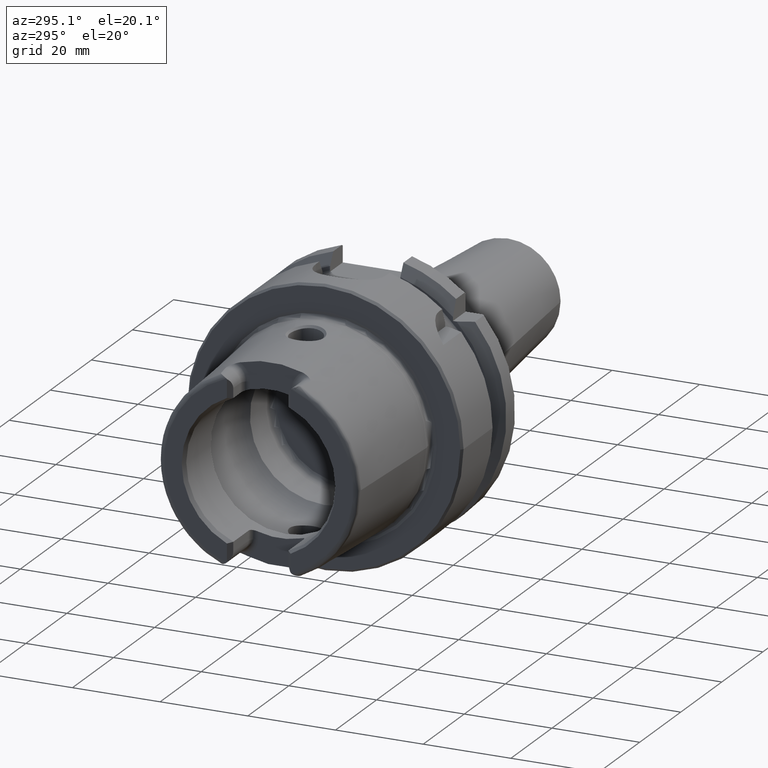
[diagram: clean part render]
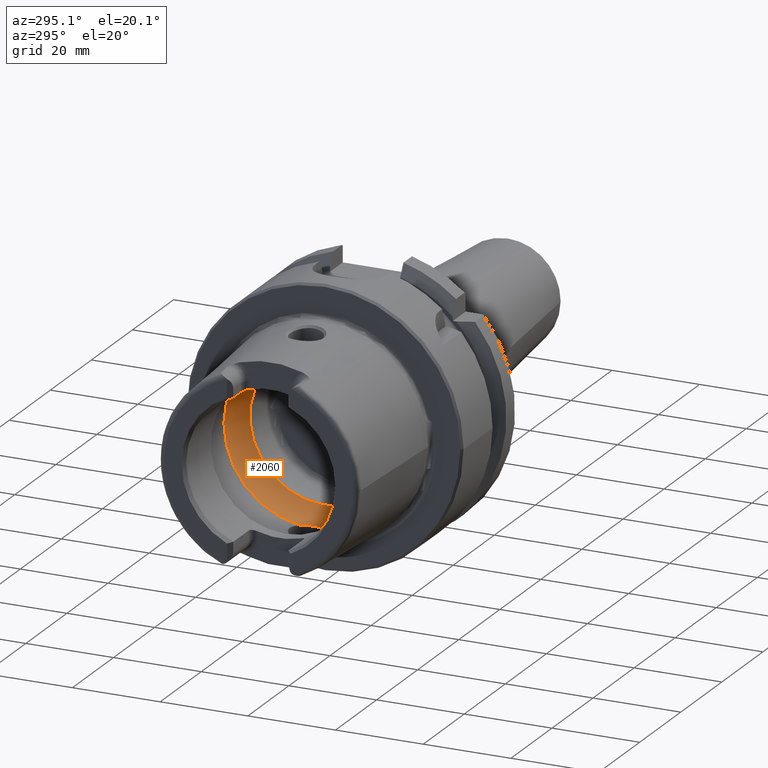
[diagram: same view with one face highlighted and labeled with its STEP entity id]
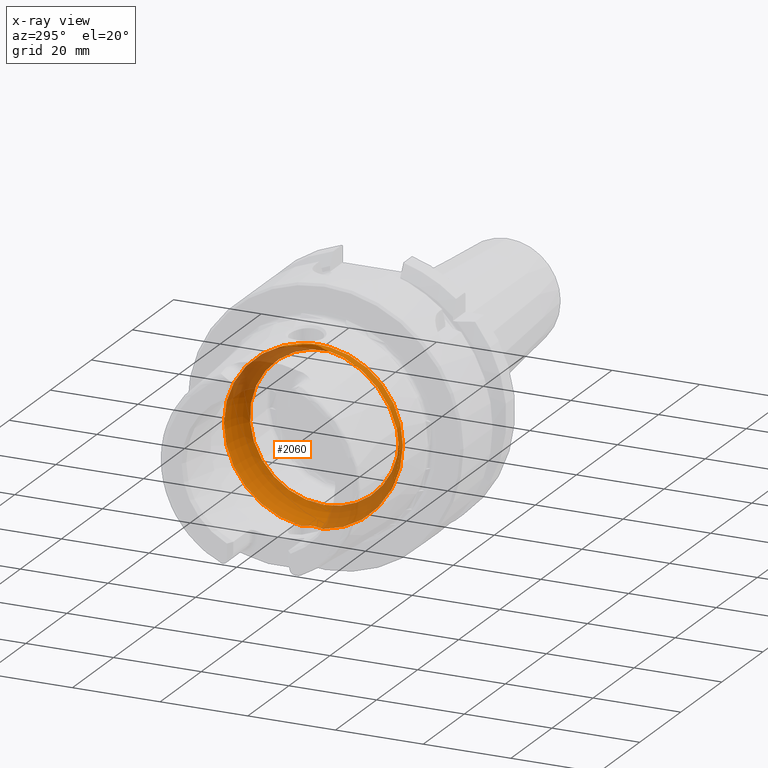
[diagram: x-ray of the same camera — body ghosted, the highlighted face saturated]
A machine part, auxiliary view. The second image highlights one B-rep face of the part: STEP entity #2060.
The next image is the same camera in x-ray: the body ghosted, the highlighted face saturated — about 30% of this face is hidden behind the body in this view.
In plain terms, the highlighted toroidal blend (fillet) surface has major radius 12 mm and minor (blend) radius 8 mm.
Its self-contained STEP definition (entity closure, byte-faithful):
#49=B_SPLINE_CURVE_WITH_KNOTS('',3,(#3630,#3631,#3632,#3633,#3634,#3635,
#3636,#3637,#3638,#3639,#3640,#3641),.UNSPECIFIED.,.F.,.F.,(4,2,2,2,2,4),
(-0.560647090003115,-0.432465132423936,-0.371738630353782,-0.32053783623797,
-0.287500355516274,-0.280385270121909),.UNSPECIFIED.);
#51=B_SPLINE_CURVE_WITH_KNOTS('',3,(#3674,#3675,#3676,#3677,#3678,#3679,
#3680,#3681,#3682,#3683),.UNSPECIFIED.,.F.,.F.,(4,2,2,2,4),(-0.280385270121909,
-0.256917987419631,-0.21744735037608,-0.138661357565599,0.),
 .UNSPECIFIED.);
#54=B_SPLINE_CURVE_WITH_KNOTS('',3,(#3799,#3800,#3801,#3802,#3803,#3804,
#3805,#3806,#3807,#3808,#3809,#3810),.UNSPECIFIED.,.F.,.F.,(4,2,2,2,2,4),
(-0.560647090003256,-0.432465132424011,-0.371738630353825,-0.32053783623799,
-0.287500355516289,-0.280385270121924),.UNSPECIFIED.);
#56=B_SPLINE_CURVE_WITH_KNOTS('',3,(#3843,#3844,#3845,#3846,#3847,#3848,
#3849,#3850,#3851,#3852),.UNSPECIFIED.,.F.,.F.,(4,2,2,2,4),(-0.280385270121924,
-0.256917987419636,-0.217447350376074,-0.138661357565593,0.),
 .UNSPECIFIED.);
#151=TOROIDAL_SURFACE('',#2262,12.,8.);
#257=FACE_OUTER_BOUND('',#390,.T.);
#390=EDGE_LOOP('',(#1561,#1562,#1563,#1564,#1565,#1566,#1567,#1568,#1569,
#1570,#1571));
#743=CIRCLE('',#2257,20.);
#746=CIRCLE('',#2260,20.);
#747=CIRCLE('',#2261,20.);
#748=CIRCLE('',#2263,17.);
#749=CIRCLE('',#2264,17.);
#750=CIRCLE('',#2265,8.);
#920=VERTEX_POINT('',#3627);
#921=VERTEX_POINT('',#3629);
#922=VERTEX_POINT('',#3642);
#925=VERTEX_POINT('',#3797);
#926=VERTEX_POINT('',#3798);
#927=VERTEX_POINT('',#3811);
#928=VERTEX_POINT('',#3855);
#931=VERTEX_POINT('',#3865);
#932=VERTEX_POINT('',#3866);
#1157=EDGE_CURVE('',#921,#920,#49,.T.);
#1159=EDGE_CURVE('',#920,#922,#51,.T.);
#1163=EDGE_CURVE('',#925,#926,#54,.T.);
#1165=EDGE_CURVE('',#926,#927,#56,.T.);
#1167=EDGE_CURVE('',#928,#925,#743,.T.);
#1171=EDGE_CURVE('',#922,#928,#746,.T.);
#1172=EDGE_CURVE('',#927,#921,#747,.T.);
#1173=EDGE_CURVE('',#931,#932,#748,.T.);
#1174=EDGE_CURVE('',#932,#931,#749,.T.);
#1175=EDGE_CURVE('',#932,#920,#750,.T.);
#1561=ORIENTED_EDGE('',*,*,#1173,.F.);
#1562=ORIENTED_EDGE('',*,*,#1174,.F.);
#1563=ORIENTED_EDGE('',*,*,#1175,.T.);
#1564=ORIENTED_EDGE('',*,*,#1159,.T.);
#1565=ORIENTED_EDGE('',*,*,#1171,.T.);
#1566=ORIENTED_EDGE('',*,*,#1167,.T.);
#1567=ORIENTED_EDGE('',*,*,#1163,.T.);
#1568=ORIENTED_EDGE('',*,*,#1165,.T.);
#1569=ORIENTED_EDGE('',*,*,#1172,.T.);
#1570=ORIENTED_EDGE('',*,*,#1157,.T.);
#1571=ORIENTED_EDGE('',*,*,#1175,.F.);
#2060=ADVANCED_FACE('',(#257),#151,.F.);
#2257=AXIS2_PLACEMENT_3D('',#3856,#2655,#2656);
#2260=AXIS2_PLACEMENT_3D('',#3862,#2662,#2663);
#2261=AXIS2_PLACEMENT_3D('',#3863,#2664,#2665);
#2262=AXIS2_PLACEMENT_3D('',#3864,#2666,#2667);
#2263=AXIS2_PLACEMENT_3D('',#3867,#2668,#2669);
#2264=AXIS2_PLACEMENT_3D('',#3868,#2670,#2671);
#2265=AXIS2_PLACEMENT_3D('',#3869,#2672,#2673);
#2655=DIRECTION('center_axis',(-1.,0.,0.));
#2656=DIRECTION('ref_axis',(0.,0.,1.));
#2662=DIRECTION('center_axis',(-1.,0.,0.));
#2663=DIRECTION('ref_axis',(0.,0.,1.));
#2664=DIRECTION('center_axis',(-1.,0.,0.));
#2665=DIRECTION('ref_axis',(0.,0.,1.));
#2666=DIRECTION('center_axis',(-1.,0.,0.));
#2667=DIRECTION('ref_axis',(0.,0.,1.));
#2668=DIRECTION('center_axis',(-1.,0.,0.));
#2669=DIRECTION('ref_axis',(0.,0.,1.));
#2670=DIRECTION('center_axis',(-1.,0.,0.));
#2671=DIRECTION('ref_axis',(0.,0.,1.));
#2672=DIRECTION('center_axis',(0.,1.,-1.22464679914735E-16));
#2673=DIRECTION('ref_axis',(0.,-1.22464679914735E-16,-1.));
#3627=CARTESIAN_POINT('',(-5.25,3.07683831259085E-16,-19.9378825251564));
#3629=CARTESIAN_POINT('',(-6.2449979983984,2.54410376580264,-19.8375284758165));
#3630=CARTESIAN_POINT('Ctrl Pts',(-6.2449979983984,2.54410376580263,-19.8375284758165));
#3631=CARTESIAN_POINT('Ctrl Pts',(-5.9563832733696,2.23156378381208,-19.877610794847));
#3632=CARTESIAN_POINT('Ctrl Pts',(-5.72238184052007,1.87139505615745,-19.9007586679726));
#3633=CARTESIAN_POINT('Ctrl Pts',(-5.47415257397377,1.29299577523533,-19.9221291461079));
#3634=CARTESIAN_POINT('Ctrl Pts',(-5.40951125063364,1.10084807786171,-19.9269865934584));
#3635=CARTESIAN_POINT('Ctrl Pts',(-5.31953029252225,0.738763665580492,-19.9333991732415));
#3636=CARTESIAN_POINT('Ctrl Pts',(-5.28971989928313,0.57048989328573,-19.9353426103026));
#3637=CARTESIAN_POINT('Ctrl Pts',(-5.25970604483208,0.291260075331645,-19.9372753146995));
#3638=CARTESIAN_POINT('Ctrl Pts',(-5.25276504295341,0.181279004510485,-19.9377089305339));
#3639=CARTESIAN_POINT('Ctrl Pts',(-5.25022501552319,0.0474369436209427,
-19.9378684144199));
#3640=CARTESIAN_POINT('Ctrl Pts',(-5.25,0.0237178817918345,-19.9378825251564));
#3641=CARTESIAN_POINT('Ctrl Pts',(-5.25,1.73633857888389E-16,-19.9378825251564));
#3642=CARTESIAN_POINT('',(-6.2449979983984,-2.54410376580264,-19.8375284758165));
#3674=CARTESIAN_POINT('Ctrl Pts',(-5.25,1.73633857888389E-16,-19.9378825251564));
#3675=CARTESIAN_POINT('Ctrl Pts',(-5.25,-0.0782273446147222,-19.9378825251564));
#3676=CARTESIAN_POINT('Ctrl Pts',(-5.25244785081342,-0.15644185230388,-19.9377296492436));
#3677=CARTESIAN_POINT('Ctrl Pts',(-5.26557067654327,-0.365860616871457,
-19.9368989370107));
#3678=CARTESIAN_POINT('Ctrl Pts',(-5.2807081654794,-0.496671474530444,-19.9359382432917));
#3679=CARTESIAN_POINT('Ctrl Pts',(-5.34656166936447,-0.885366242555149,
-19.9315392091305));
#3680=CARTESIAN_POINT('Ctrl Pts',(-5.41752174824152,-1.13897710923821,-19.9266508951874));
#3681=CARTESIAN_POINT('Ctrl Pts',(-5.68473945553282,-1.81246400136134,-19.9044561094296));
#3682=CARTESIAN_POINT('Ctrl Pts',(-5.93280828188796,-2.20603449935731,-19.880884849314));
#3683=CARTESIAN_POINT('Ctrl Pts',(-6.2449979983984,-2.54410376580263,-19.8375284758165));
#3797=CARTESIAN_POINT('',(-6.2449979983984,-2.54410376580264,19.8375284758165));
#3798=CARTESIAN_POINT('',(-5.25,4.81156178856766E-16,19.9378825251564));
#3799=CARTESIAN_POINT('Ctrl Pts',(-6.2449979983984,-2.54410376580264,19.8375284758165));
#3800=CARTESIAN_POINT('Ctrl Pts',(-5.9563832733696,-2.23156378381209,19.877610794847));
#3801=CARTESIAN_POINT('Ctrl Pts',(-5.72238184052007,-1.87139505615746,19.9007586679726));
#3802=CARTESIAN_POINT('Ctrl Pts',(-5.47415257397376,-1.29299577523533,19.9221291461079));
#3803=CARTESIAN_POINT('Ctrl Pts',(-5.40951125063363,-1.10084807786172,19.9269865934584));
#3804=CARTESIAN_POINT('Ctrl Pts',(-5.31953029252225,-0.738763665580501,
19.9333991732415));
#3805=CARTESIAN_POINT('Ctrl Pts',(-5.28971989928313,-0.570489893285745,
19.9353426103026));
#3806=CARTESIAN_POINT('Ctrl Pts',(-5.25970604483207,-0.291260075331669,
19.9372753146995));
#3807=CARTESIAN_POINT('Ctrl Pts',(-5.2527650429534,-0.181279004510531,19.9377089305339));
#3808=CARTESIAN_POINT('Ctrl Pts',(-5.25022501552319,-0.0474369436209401,
19.9378684144199));
#3809=CARTESIAN_POINT('Ctrl Pts',(-5.25,-0.0237178817918311,19.9378825251564));
#3810=CARTESIAN_POINT('Ctrl Pts',(-5.25,5.15920899939407E-16,19.9378825251564));
#3811=CARTESIAN_POINT('',(-6.2449979983984,2.54410376580264,19.8375284758165));
#3843=CARTESIAN_POINT('Ctrl Pts',(-5.25,5.15920899939407E-16,19.9378825251564));
#3844=CARTESIAN_POINT('Ctrl Pts',(-5.25,0.0782273446147462,19.9378825251564));
#3845=CARTESIAN_POINT('Ctrl Pts',(-5.25244785081342,0.156441852303891,19.9377296492436));
#3846=CARTESIAN_POINT('Ctrl Pts',(-5.26557067654326,0.36586061687142,19.9368989370107));
#3847=CARTESIAN_POINT('Ctrl Pts',(-5.28070816547939,0.496671474530425,19.9359382432917));
#3848=CARTESIAN_POINT('Ctrl Pts',(-5.34656166936446,0.885366242555101,19.9315392091305));
#3849=CARTESIAN_POINT('Ctrl Pts',(-5.41752174824151,1.13897710923819,19.9266508951874));
#3850=CARTESIAN_POINT('Ctrl Pts',(-5.68473945553283,1.81246400136138,19.9044561094296));
#3851=CARTESIAN_POINT('Ctrl Pts',(-5.93280828188797,2.20603449935733,19.880884849314));
#3852=CARTESIAN_POINT('Ctrl Pts',(-6.2449979983984,2.54410376580264,19.8375284758165));
#3855=CARTESIAN_POINT('',(-6.2449979983984,-20.,2.44929359829471E-15));
#3856=CARTESIAN_POINT('Origin',(-6.2449979983984,0.,0.));
#3862=CARTESIAN_POINT('Origin',(-6.2449979983984,0.,0.));
#3863=CARTESIAN_POINT('Origin',(-6.2449979983984,0.,0.));
#3864=CARTESIAN_POINT('Origin',(-6.2449979983984,0.,0.));
#3865=CARTESIAN_POINT('',(0.,-17.,2.0818995585505E-15));
#3866=CARTESIAN_POINT('',(0.,-2.0818995585505E-15,-17.));
#3867=CARTESIAN_POINT('Origin',(0.,0.,0.));
#3868=CARTESIAN_POINT('Origin',(0.,0.,0.));
#3869=CARTESIAN_POINT('Origin',(-6.2449979983984,-1.46957615897682E-15,
-12.));